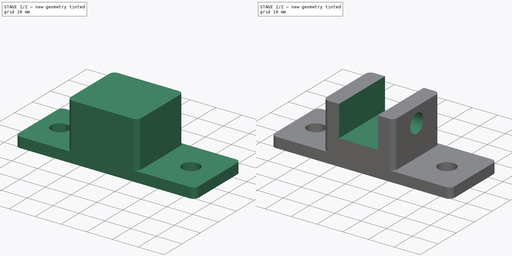
[diagram: build sequence overview — one tinted view per stage of 2, left to right]
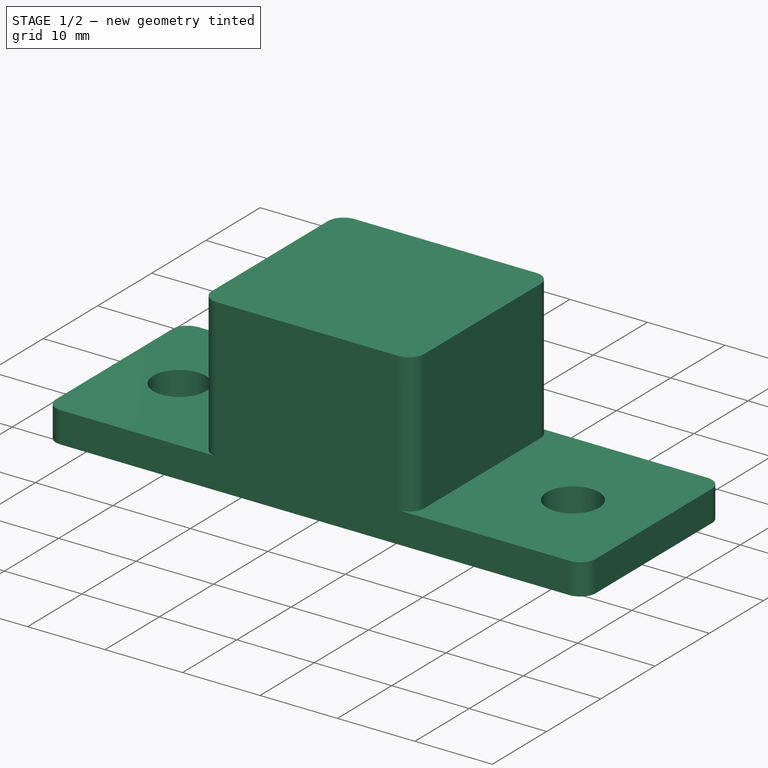
[diagram: stage 1 of 2 — iso view after this stage's code; geometry added in this stage tinted green]
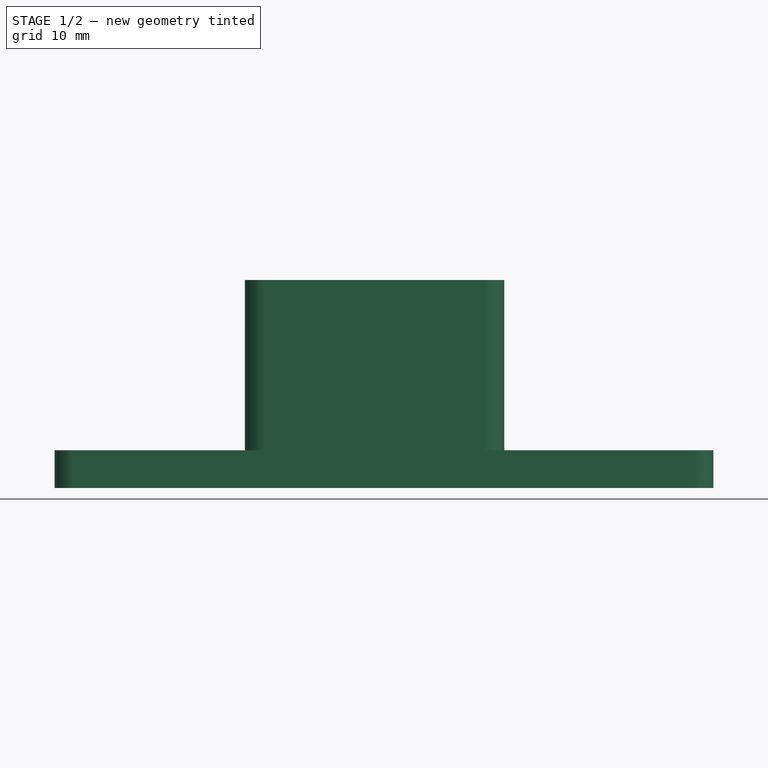
[diagram: stage 1 of 2 — front view after this stage's code; geometry added in this stage tinted green]
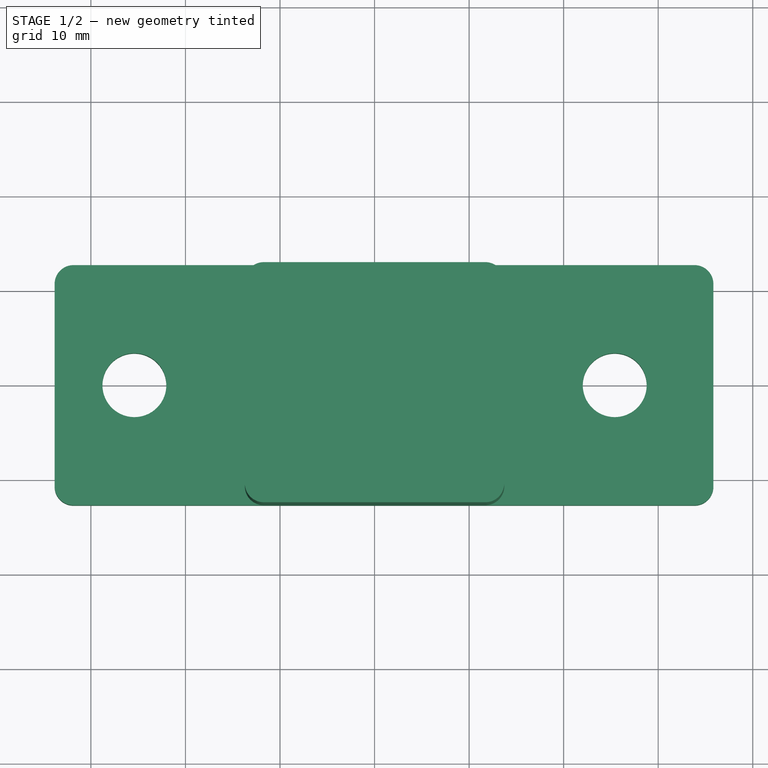
[diagram: stage 1 of 2 — top view after this stage's code; geometry added in this stage tinted green]
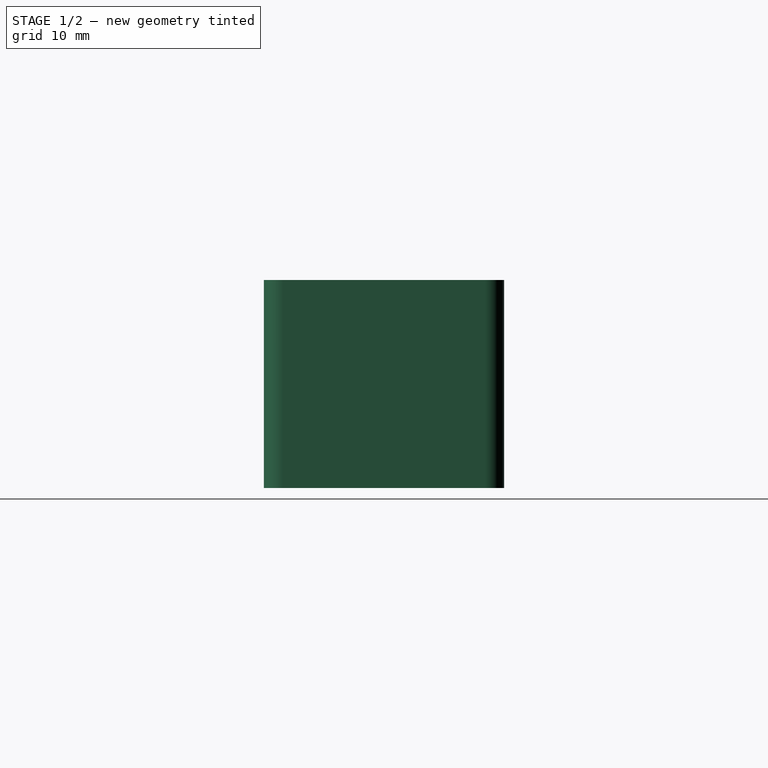
[diagram: stage 1 of 2 — right view after this stage's code; geometry added in this stage tinted green]
FCSTD DOCUMENT  (FreeCAD 1.0R39285 (Git))
Label: power_connector_mount
License: All rights reserved
LicenseURL: https://en.wikipedia.org/wiki/All_rights_reserved
objects: Sketcher::SketchObject×4, PartDesign::Pad×2, PartDesign::Plane×2, PartDesign::Pocket×2, Spreadsheet::Sheet×1, PartDesign::Body×1
note: 23 computed .brp shape members not serialized (recipe doc carries the construction recipe); baked Part::Feature solids carry a one-line shape summary decoded from their .brp

FEATURE [Spreadsheet::Sheet] Spreadsheet
  cells = A2='Design Parameters; A4='power_connector_width; B4(power_connector_width)==14 mm; A5='power_connector_height; B5(power_connector_height)==12 mm; A6='power_connector_side_margin; B6(power_connector_side_margin)==0.5 mm; A7='power_connector_pocket_width; B7(power_connector_pocket_width)==power_connector_width + 2 * power_connector_side_margin; A8='power_connector_pocket_depth; B8(power_connector_pocket_depth)==power_connector_height; A10='screw_10_32_head_height; B10(screw_10_32_head_height)==6 mm; A11='threaded_insert_10_32_length; B11(threaded_insert_10_32_length)==0.225 in; A12='threaded_insert_10_32_top_diameter; B12(threaded_insert_10_32_top_diameter)==0.297 in; A13='threaded_insert_10_32_bottom_diameter; B13(threaded_insert_10_32_bottom_diameter)==0.272 in; A14='threaded_insert_10_32_hole_diameter; B14(threaded_insert_10_32_hole_diameter)==0.5 * threaded_insert_10_32_top_diameter + 0.5 * threaded_insert_10_32_bottom_diameter; A15='threaded_insert_10_32_length_margin; B15(threaded_insert_10_32_length_margin)==0.5 mm; A17='mount_hole_spacing; B17(mount_hole_spacing)==2 in; A18='mount_hole_diameter; B18(mount_hole_diameter)==0.266 in; A19='mount_washer_diameter; B19(mount_washer_diameter)==0.625 in; A20='mount_washer_margin; B20(mount_washer_margin)==1.5 mm; A22='base_wall_thickness; B22(base_wall_thickness)==threaded_insert_10_32_length + threaded_insert_10_32_length_margin; A23='base_length; B23(base_length)==1 in; A24='base_width; B24(base_width)==power_connector_pocket_width + 2 * base_wall_thickness; A25='base_height; B25(base_height)==power_connector_height + screw_10_32_head_height; A26='base_fillet_radius; B26(base_fillet_radius)==2 mm; A28='mount_flange_length; B28(mount_flange_length)==base_length; A29='mount_flange_width; B29(mount_flange_width)==mount_hole_spacing + mount_washer_diameter + 2 * mount_washer_margin; A30='mount_flange_thickness; B30(mount_flange_thickness)==4 mm; A31='mount_flange_fillet_radius; B31(mount_flange_fillet_radius)==2 mm; A33='right_datum_plane_offset; B33(right_datum_plane_offset)==0.5 * base_width; A34='threaded_insert_hole_offset_from_top; B34(threaded_insert_hole_offset_from_top)==0.5 * power_connector_pocket_depth
FEATURE [Sketcher::SketchObject] Sketch  label="BaseSketch"
  ArcFitTolerance = 1e-06
  AttachmentSupport = -> [XY_Plane]
  FullyConstrained = true
  MakeInternals = false
  MapMode = 5
  expr: Constraints[19] = Spreadsheet.base_fillet_radius
  expr: Constraints[21] = Spreadsheet.base_width
  expr: Constraints[22] = Spreadsheet.base_length
  sketch-geometry (10):
    g0: LineSegment StartX=-13.715 StartY=10.7 StartZ=0 EndX=-13.715 EndY=-10.7 EndZ=0
    g1: LineSegment StartX=-11.715 StartY=-12.7 StartZ=0 EndX=11.715 EndY=-12.7 EndZ=0
    g2: LineSegment StartX=13.715 StartY=-10.7 StartZ=0 EndX=13.715 EndY=10.7 EndZ=0
    g3: LineSegment StartX=11.715 StartY=12.7 StartZ=0 EndX=-11.715 EndY=12.7 EndZ=0
    g4: ArcOfCircle CenterX=-11.715 CenterY=10.7 CenterZ=0 NormalX=0 NormalY=0 NormalZ=1 AngleXU=0 Radius=2 StartAngle=1.5708 EndAngle=3.14159
    g5: ArcOfCircle CenterX=-11.715 CenterY=-10.7 CenterZ=0 NormalX=0 NormalY=0 NormalZ=1 AngleXU=0 Radius=2 StartAngle=3.14159 EndAngle=4.71239
    g6: ArcOfCircle CenterX=11.715 CenterY=-10.7 CenterZ=0 NormalX=0 NormalY=0 NormalZ=1 AngleXU=0 Radius=2 StartAngle=4.71239 EndAngle=6.28319
    g7: ArcOfCircle CenterX=11.715 CenterY=10.7 CenterZ=0 NormalX=0 NormalY=0 NormalZ=1 AngleXU=0 Radius=2 StartAngle=0 EndAngle=1.5708
    g8: GeomPoint [constr] X=-13.715 Y=12.7 Z=0
    g9: GeomPoint [constr] X=13.715 Y=-12.7 Z=0
  constraints (23):
    c: Tangent(g0,g4) = -1.5708
    c: Tangent(g0,g5) = -1.5708
    c: Tangent(g1,g5) = -1.5708
    c: Tangent(g1,g6) = -1.5708
    c: Tangent(g2,g6) = -1.5708
    c: Tangent(g2,g7) = -1.5708
    c: Tangent(g3,g7) = -1.5708
    c: Tangent(g3,g4) = -1.5708
    c: Vertical(g0)
    c: Vertical(g2)
    c: Horizontal(g1)
    c: Horizontal(g3)
    c: Equal(g4,g5)
    c: Equal(g5,g6)
    c: Equal(g6,g7)
    c: PointOnObject(g8,g0)
    c: PointOnObject(g8,g3)
    c: PointOnObject(g9,g1)
    c: PointOnObject(g9,g2)
    c: Radius(g5) = 2
    c: Symmetric(g4,g6,g-1)
    c: DistanceX(g0,g2) = 27.43
    c: DistanceY(g1,g3) = 25.4
FEATURE [PartDesign::Pad] Pad  label="BasePad"
  Direction = (0,0,1)
  Length = 18
  Length2 = 10
  Profile = -> Sketch
  ReferenceAxis = -> Sketch [N_Axis]
  Refine = true
  Suppressed = false
  Type = 0
  expr: Length = Spreadsheet.base_height
FEATURE [PartDesign::Plane] DatumPlane  label="TopDatumPlane"
  AttachmentOffset = pos=(0,0,18) rot=(0,0,1;0rad)
  AttachmentSupport = -> [XY_Plane]
  Length = 81.4797
  MapMode = 5
  Placement = pos=(0,0,18) rot=(0,0,1;0rad)
  ResizeMode = 0
  Width = 61.8047
  expr: .AttachmentOffset.Base.z = Spreadsheet.base_height
FEATURE [Sketcher::SketchObject] Sketch001  label="MountFlangeSketch"
  ArcFitTolerance = 1e-06
  AttachmentSupport = -> [XY_Plane]
  FullyConstrained = true
  MakeInternals = false
  MapMode = 5
  expr: Constraints[19] = Spreadsheet.mount_flange_fillet_radius
  expr: Constraints[21] = Spreadsheet.mount_flange_length
  expr: Constraints[22] = Spreadsheet.mount_flange_width
  expr: Constraints[25] = Spreadsheet.mount_hole_spacing
  expr: Constraints[29] = Spreadsheet.mount_hole_diameter
  sketch-geometry (13):
    g0: LineSegment StartX=-33.8375 StartY=10.7 StartZ=0 EndX=-33.8375 EndY=-10.7 EndZ=0
    g1: LineSegment StartX=-31.8375 StartY=-12.7 StartZ=0 EndX=33.8375 EndY=-12.7 EndZ=0
    g2: LineSegment StartX=35.8375 StartY=-10.7 StartZ=0 EndX=35.8375 EndY=10.7 EndZ=0
    g3: LineSegment StartX=33.8375 StartY=12.7 StartZ=0 EndX=-31.8375 EndY=12.7 EndZ=0
    g4: ArcOfCircle CenterX=-31.8375 CenterY=10.7 CenterZ=0 NormalX=0 NormalY=0 NormalZ=1 AngleXU=0 Radius=2 StartAngle=1.5708 EndAngle=3.14159
    g5: ArcOfCircle CenterX=-31.8375 CenterY=-10.7 CenterZ=0 NormalX=0 NormalY=0 NormalZ=1 AngleXU=0 Radius=2 StartAngle=3.14159 EndAngle=4.71239
    g6: ArcOfCircle CenterX=33.8375 CenterY=-10.7 CenterZ=0 NormalX=0 NormalY=0 NormalZ=1 AngleXU=0 Radius=2 StartAngle=4.71239 EndAngle=6.28319
    g7: ArcOfCircle CenterX=33.8375 CenterY=10.7 CenterZ=0 NormalX=0 NormalY=0 NormalZ=1 AngleXU=0 Radius=2 StartAngle=1.242e-13 EndAngle=1.5708
    g8: GeomPoint [constr] X=-33.8375 Y=12.7 Z=0
    g9: GeomPoint [constr] X=35.8375 Y=-12.7 Z=0
    g10: LineSegment [constr] StartX=-25.4 StartY=0 StartZ=0 EndX=25.4 EndY=0 EndZ=0
    g11: Circle CenterX=-25.4 CenterY=0 CenterZ=0 NormalX=0 NormalY=0 NormalZ=1 AngleXU=0 Radius=3.3782
    g12: Circle CenterX=25.4 CenterY=0 CenterZ=0 NormalX=0 NormalY=0 NormalZ=1 AngleXU=0 Radius=3.3782
  constraints (30):
    c: Tangent(g0,g4) = -1.5708
    c: Tangent(g0,g5) = -1.5708
    c: Tangent(g1,g5) = -1.5708
    c: Tangent(g1,g6) = -1.5708
    c: Tangent(g2,g6) = -1.5708
    c: Tangent(g2,g7) = -1.5708
    c: Tangent(g3,g7) = -1.5708
    c: Tangent(g3,g4) = -1.5708
    c: Vertical(g0)
    c: Vertical(g2)
    c: Horizontal(g1)
    c: Horizontal(g3)
    c: Equal(g4,g5)
    c: Equal(g5,g6)
    c: Equal(g6,g7)
    c: PointOnObject(g8,g0)
    c: PointOnObject(g8,g3)
    c: PointOnObject(g9,g1)
    c: PointOnObject(g9,g2)
    c: Radius(g5) = 2
    c: Symmetric(g0,g6,g-1)
    c: DistanceY(g1,g3) = 25.4
    c: DistanceX(g0,g2) = 69.675
    c: Horizontal(g10)
    c: Symmetric(g10,g10,g-1)
    c: DistanceX(g10,g10) = 50.8
    c: Coincident(g11,g10)
    c: Coincident(g12,g10)
    c: Equal(g11,g12)
    c: Diameter(g11) = 6.7564
FEATURE [PartDesign::Pad] Pad001  label="MountFlangePad"
  BaseFeature = -> Pad
  Direction = (0,0,1)
  Length = 4
  Length2 = 10
  Profile = -> Sketch001
  ReferenceAxis = -> Sketch001 [N_Axis]
  Refine = true
  Reversed = true
  Suppressed = false
  Type = 0
  expr: Length = Spreadsheet.mount_flange_thickness
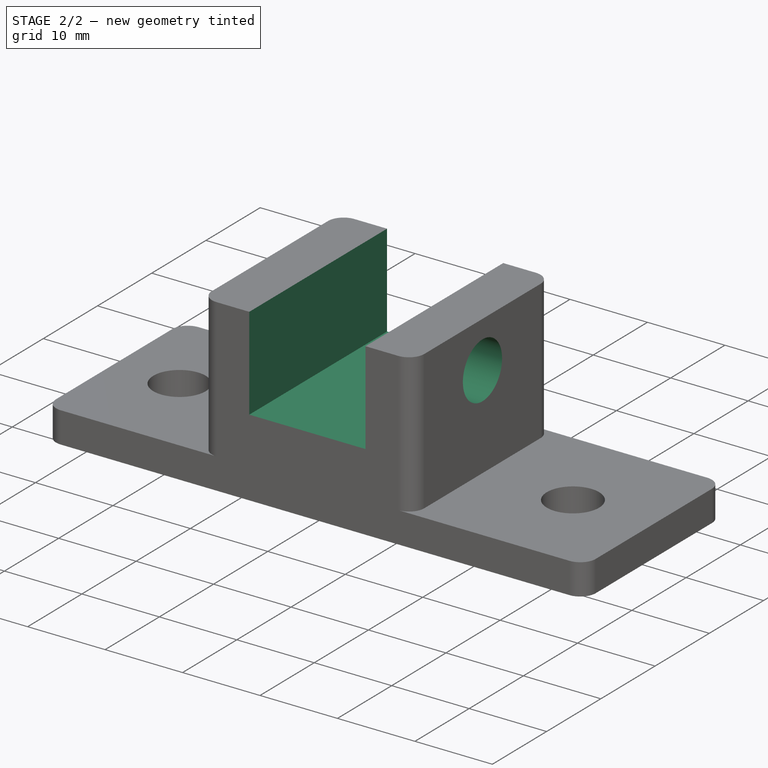
[diagram: stage 2 of 2 — iso view after this stage's code; geometry added in this stage tinted green]
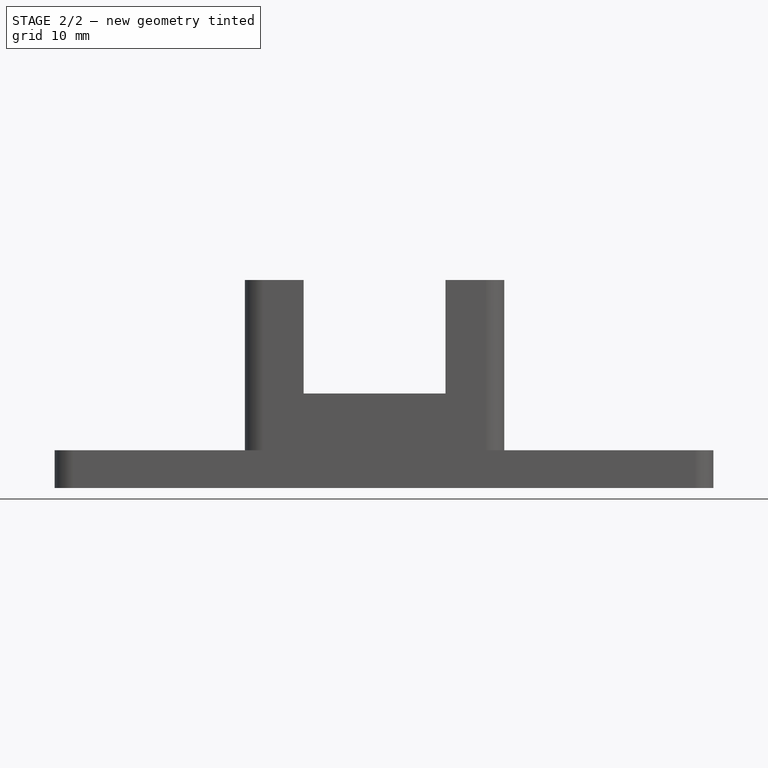
[diagram: stage 2 of 2 — front view after this stage's code; geometry added in this stage tinted green]
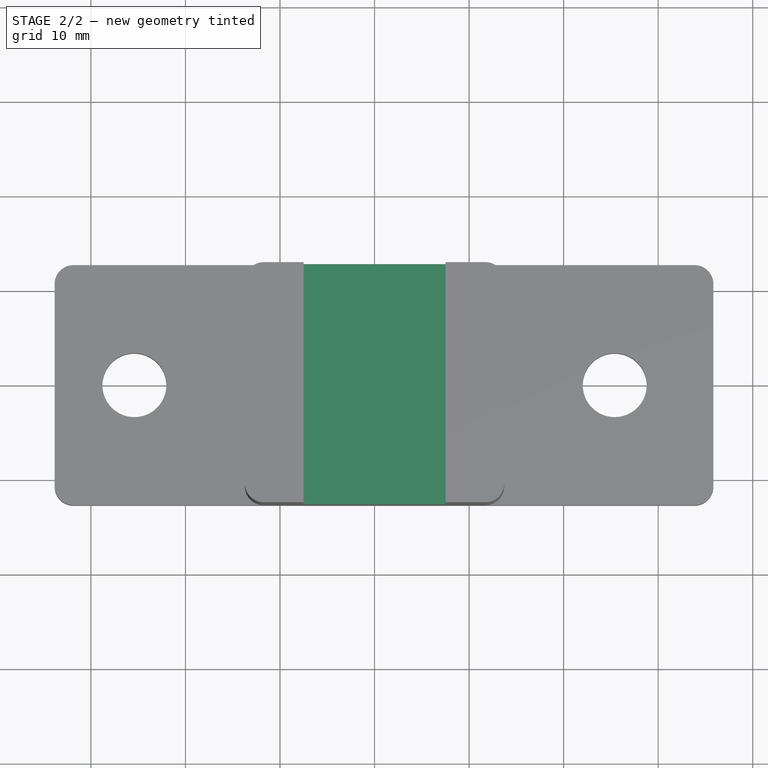
[diagram: stage 2 of 2 — top view after this stage's code; geometry added in this stage tinted green]
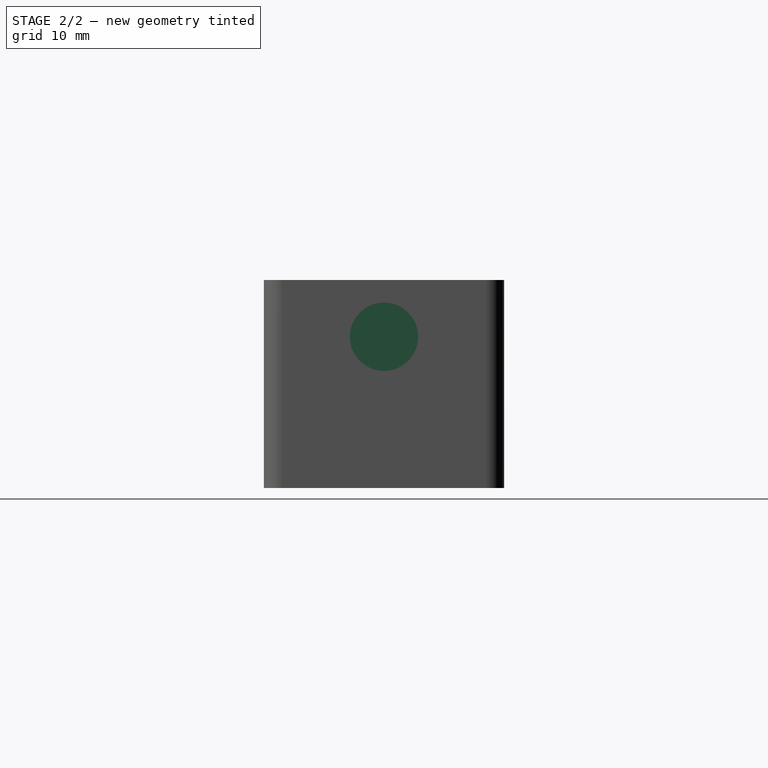
[diagram: stage 2 of 2 — right view after this stage's code; geometry added in this stage tinted green]
FEATURE [Sketcher::SketchObject] Sketch002  label="PowerConnectorPocketSketch"
  ArcFitTolerance = 1e-06
  AttachmentSupport = -> [DatumPlane]
  FullyConstrained = true
  MakeInternals = false
  MapMode = 5
  Placement = pos=(0,0,18) rot=(0,0,1;0rad)
  expr: Constraints[10] = Spreadsheet.power_connector_pocket_width
  expr: Constraints[11] = Spreadsheet.base_length
  sketch-geometry (5):
    g0: LineSegment StartX=-7.5 StartY=12.7 StartZ=0 EndX=-7.5 EndY=-12.7 EndZ=0
    g1: LineSegment StartX=-7.5 StartY=-12.7 StartZ=0 EndX=7.5 EndY=-12.7 EndZ=0
    g2: LineSegment StartX=7.5 StartY=-12.7 StartZ=0 EndX=7.5 EndY=12.7 EndZ=0
    g3: LineSegment StartX=7.5 StartY=12.7 StartZ=0 EndX=-7.5 EndY=12.7 EndZ=0
    g4: GeomPoint [constr] X=0 Y=0 Z=0
  constraints (12):
    c: Coincident(g0,g1)
    c: Coincident(g1,g2)
    c: Coincident(g2,g3)
    c: Coincident(g3,g0)
    c: Vertical(g0)
    c: Vertical(g2)
    c: Horizontal(g1)
    c: Horizontal(g3)
    c: Symmetric(g2,g0,g4)
    c: Coincident(g4,g-1)
    c: Distance(g1,g1) = 15
    c: Distance(g2,g2) = 25.4
FEATURE [PartDesign::Pocket] Pocket  label="PowerConnectorPocket"
  BaseFeature = -> Pad001
  Direction = (0,0,-1)
  Length = 12
  Length2 = 5
  Profile = -> Sketch002
  ReferenceAxis = -> Sketch002 [N_Axis]
  Refine = true
  Suppressed = false
  Type = 0
  expr: Length = Spreadsheet.power_connector_pocket_depth
FEATURE [PartDesign::Plane] DatumPlane001  label="RightDatumPlane"
  AttachmentOffset = pos=(0,0,13.715) rot=(0,0,1;0rad)
  AttachmentSupport = -> [YZ_Plane]
  Length = 60
  MapMode = 5
  Placement = pos=(13.715,0,0) rot=(0.57735,0.57735,0.57735;2.0944rad)
  ResizeMode = 0
  Width = 60
  expr: .AttachmentOffset.Base.z = Spreadsheet.right_datum_plane_offset
FEATURE [Sketcher::SketchObject] Sketch003  label="ThreadedInsertHoleSketch"
  ArcFitTolerance = 1e-06
  AttachmentSupport = -> [DatumPlane001]
  FullyConstrained = true
  MakeInternals = false
  MapMode = 5
  Placement = pos=(13.715,0,0) rot=(0.57735,0.57735,0.57735;2.0944rad)
  expr: Constraints[2] = Spreadsheet.base_height
  expr: Constraints[4] = Spreadsheet.threaded_insert_hole_offset_from_top
  expr: Constraints[6] = Spreadsheet.threaded_insert_10_32_hole_diameter
  sketch-geometry (3):
    g0: LineSegment [constr] StartX=0 StartY=0 StartZ=0 EndX=0 EndY=18 EndZ=0
    g1: GeomPoint [constr] X=0 Y=12 Z=0
    g2: Circle CenterX=0 CenterY=12 CenterZ=0 NormalX=0 NormalY=0 NormalZ=1 AngleXU=0 Radius=3.61315
  constraints (7):
    c: Coincident(g0,g-1)
    c: Vertical(g0)
    c: DistanceY(g0,g0) = 18
    c: PointOnObject(g1,g0)
    c: Distance(g0,g1) = 6
    c: Coincident(g2,g1)
    c: Diameter(g2) = 7.2263
FEATURE [PartDesign::Pocket] Pocket001  label="ThreadedInsertPocket"
  BaseFeature = -> Pocket
  Direction = (-1,0,0)
  Length = 6.215
  Length2 = 5
  Profile = -> Sketch003
  ReferenceAxis = -> Sketch003 [N_Axis]
  Refine = true
  Suppressed = false
  Type = 0
  expr: Length = Spreadsheet.base_wall_thickness
FEATURE [PartDesign::Body] Body
  AllowCompound = false
  Group = -> [Sketch,Pad,DatumPlane,Sketch001,Pad001,Sketch002,Pocket,DatumPlane001,Sketch003,Pocket001]
  Origin = -> Origin
  Tip = -> Pocket001
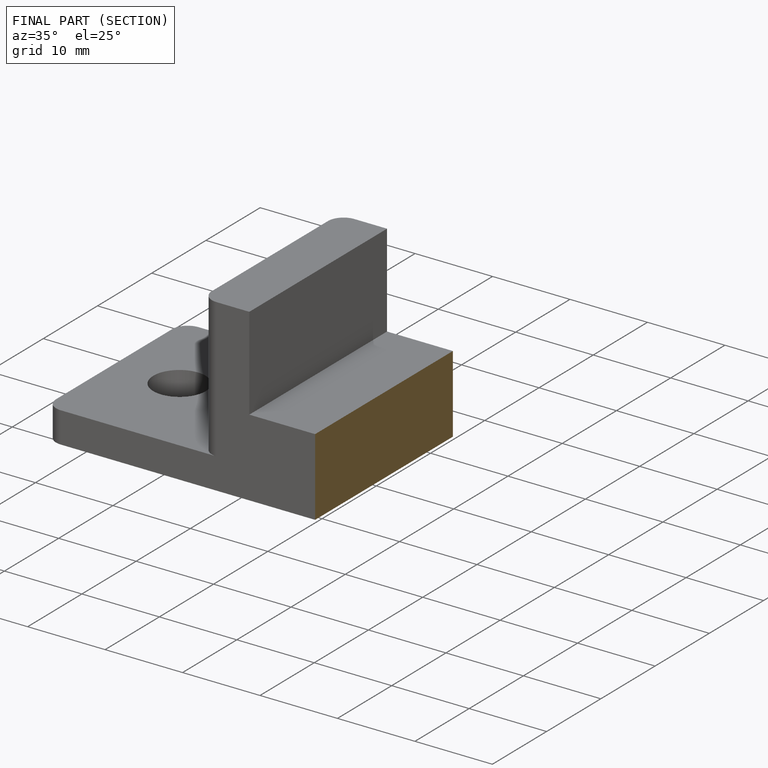
[diagram: finished part — half-section view (interior)]
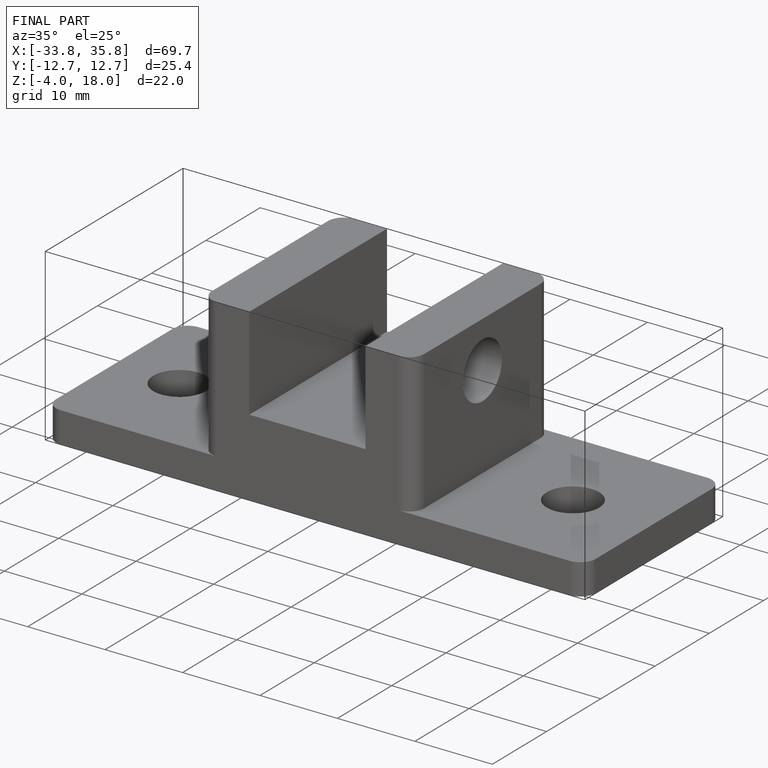
[diagram: finished part — iso view with bounding-box wireframe]
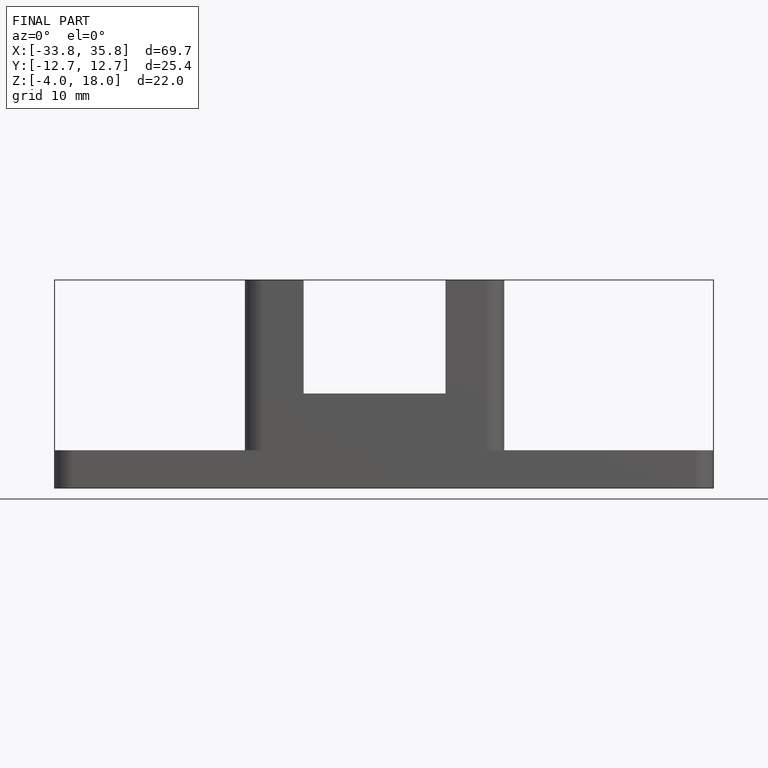
[diagram: finished part — front view with bounding-box wireframe]
